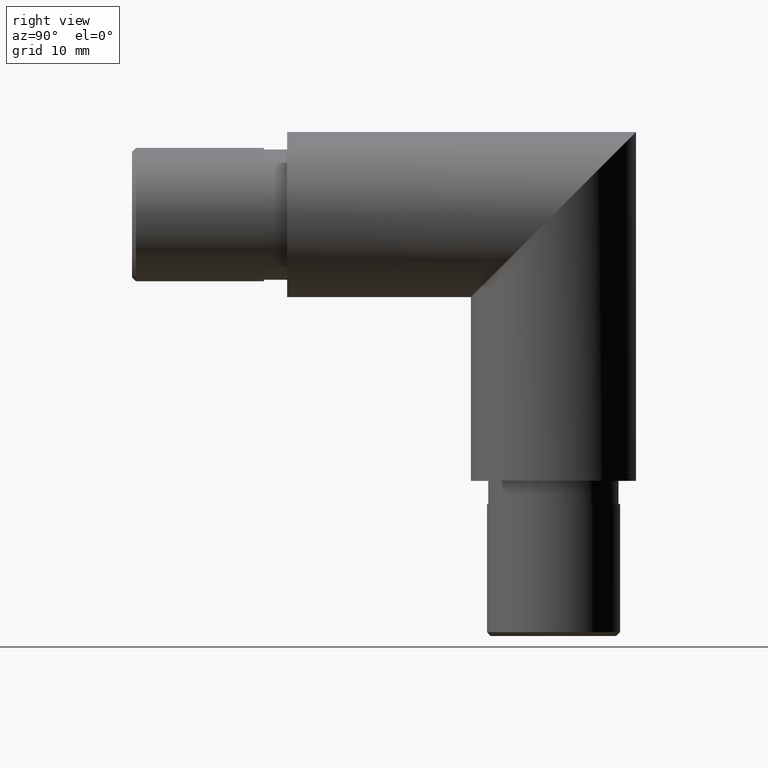
[diagram: clean part render]
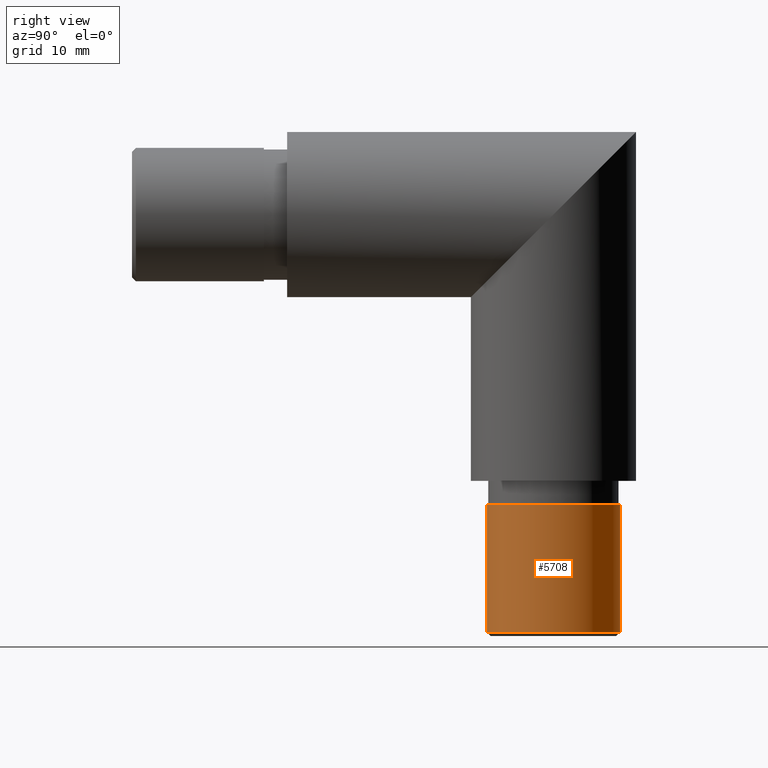
[diagram: same view with one face highlighted and labeled with its STEP entity id]
A machine part, right view. The second image highlights one B-rep face of the part: STEP entity #5708.
In plain terms, the highlighted cylindrical surface (bore or boss wall) has radius 8.6 mm, axis along (-0, 0, 1).
Its self-contained STEP definition (entity closure, byte-faithful):
#531 = CYLINDRICAL_SURFACE ( 'NONE', #9410, 8.600000000000003200 ) ;
#799 = DIRECTION ( 'NONE',  ( 0.0000000000000000000, -1.000000000000000000, 3.227392513445221100E-015 ) ) ;
#3663 = CARTESIAN_POINT ( 'NONE',  ( 0.0000000000000000000, 34.34999999999980200, -53.84999999999998000 ) ) ;
#3742 = DIRECTION ( 'NONE',  ( -1.000000000000000000, 0.0000000000000000000, 0.0000000000000000000 ) ) ;
#4768 = CARTESIAN_POINT ( 'NONE',  ( -8.600000000000001400, 34.34999999999980200, -53.84999999999998000 ) ) ;
#4871 = EDGE_LOOP ( 'NONE', ( #6074 ) ) ;
#5153 = CARTESIAN_POINT ( 'NONE',  ( 0.0000000000000000000, 34.34999999999985900, -37.35000000000000100 ) ) ;
#5690 = CARTESIAN_POINT ( 'NONE',  ( 0.0000000000000000000, 34.34999999999980200, -54.35000000000000100 ) ) ;
#5708 = ADVANCED_FACE ( 'NONE', ( #10446, #9178 ), #531, .T. ) ;
#6074 = ORIENTED_EDGE ( 'NONE', *, *, #12165, .T. ) ;
#6153 = AXIS2_PLACEMENT_3D ( 'NONE', #5153, #8138, #7166 ) ;
#6587 = ORIENTED_EDGE ( 'NONE', *, *, #7579, .T. ) ;
#6631 = DIRECTION ( 'NONE',  ( 0.0000000000000000000, 0.0000000000000000000, 1.000000000000000000 ) ) ;
#6867 = DIRECTION ( 'NONE',  ( -0.0000000000000000000, 3.386180225106727800E-015, 1.000000000000000000 ) ) ;
#7166 = DIRECTION ( 'NONE',  ( 0.0000000000000000000, 1.000000000000000000, -3.227392513445221100E-015 ) ) ;
#7579 = EDGE_CURVE ( 'NONE', #7708, #7708, #8443, .T. ) ;
#7708 = VERTEX_POINT ( 'NONE', #4768 ) ;
#8138 = DIRECTION ( 'NONE',  ( 0.0000000000000000000, -3.386180225106727400E-015, -1.000000000000000000 ) ) ;
#8443 = CIRCLE ( 'NONE', #8889, 8.600000000000001400 ) ;
#8889 = AXIS2_PLACEMENT_3D ( 'NONE', #3663, #6631, #3742 ) ;
#9178 = FACE_OUTER_BOUND ( 'NONE', #4871, .T. ) ;
#9410 = AXIS2_PLACEMENT_3D ( 'NONE', #5690, #6867, #799 ) ;
#10446 = FACE_OUTER_BOUND ( 'NONE', #10762, .T. ) ;
#10762 = EDGE_LOOP ( 'NONE', ( #6587 ) ) ;
#11745 = CIRCLE ( 'NONE', #6153, 8.600000000000003200 ) ;
#11906 = CARTESIAN_POINT ( 'NONE',  ( 0.0000000000000000000, 42.94999999999986100, -37.35000000000003000 ) ) ;
#12165 = EDGE_CURVE ( 'NONE', #13157, #13157, #11745, .T. ) ;
#13157 = VERTEX_POINT ( 'NONE', #11906 ) ;